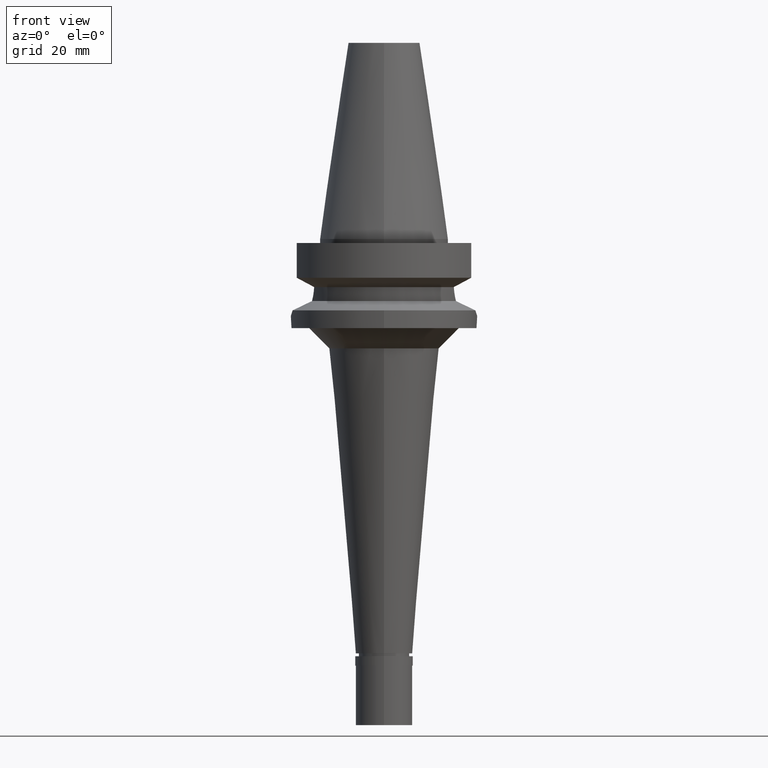
[diagram: clean part render]
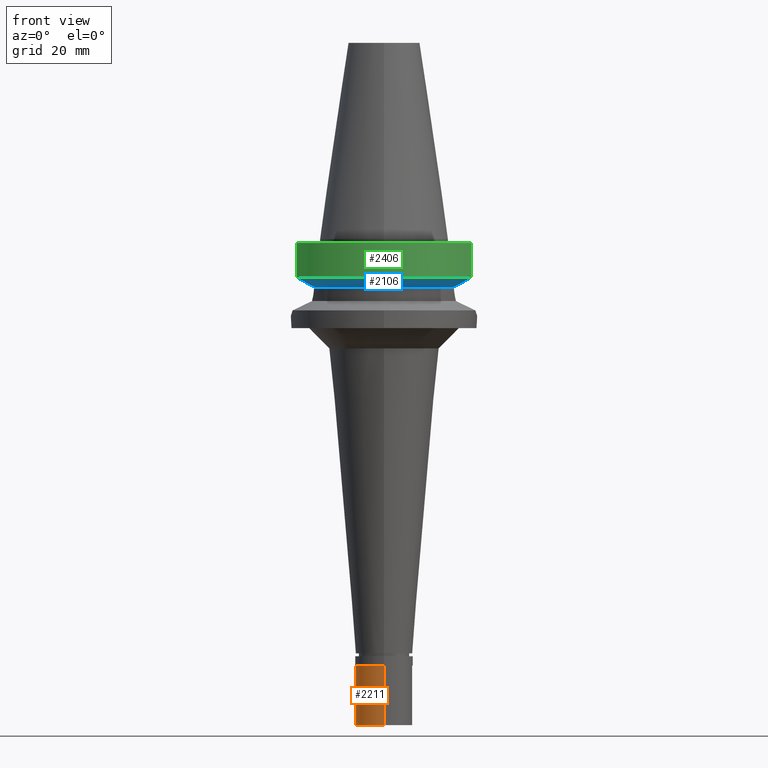
[diagram: same view with three faces highlighted in distinct colors, each labeled with its STEP entity id]
A machine part, front view with three faces highlighted in distinct colors.
Their STEP definitions:

[orange] entity #2211 — the highlighted cylindrical surface (edge-blend (fillet) strip) has radius 7 mm, axis along (0, 0, 1).
#6 = CARTESIAN_POINT ( 'NONE',  ( 0.0000000000000000000, 7.000000000000000000, -17.00000000000000000 ) ) ;
#116 = AXIS2_PLACEMENT_3D ( 'NONE', #1619, #1867, #1342 ) ;
#146 = CARTESIAN_POINT ( 'NONE',  ( 0.0000000000000000000, 7.000000000000000000, -2.299999999999999822 ) ) ;
#167 = CIRCLE ( 'NONE', #837, 7.000000000000000000 ) ;
#428 = EDGE_CURVE ( 'NONE', #584, #2195, #820, .T. ) ;
#430 = EDGE_CURVE ( 'NONE', #966, #584, #167, .T. ) ;
#487 = DIRECTION ( 'NONE',  ( 0.0000000000000000000, 0.0000000000000000000, 1.000000000000000000 ) ) ;
#520 = EDGE_CURVE ( 'NONE', #2195, #2131, #1743, .T. ) ;
#584 = VERTEX_POINT ( 'NONE', #146 ) ;
#708 = CYLINDRICAL_SURFACE ( 'NONE', #2435, 7.000000000000000000 ) ;
#819 = EDGE_CURVE ( 'NONE', #966, #2131, #1202, .T. ) ;
#820 = LINE ( 'NONE', #1458, #2413 ) ;
#837 = AXIS2_PLACEMENT_3D ( 'NONE', #1485, #1013, #2404 ) ;
#922 = FACE_OUTER_BOUND ( 'NONE', #2956, .T. ) ;
#966 = VERTEX_POINT ( 'NONE', #2279 ) ;
#1009 = ORIENTED_EDGE ( 'NONE', *, *, #520, .T. ) ;
#1013 = DIRECTION ( 'NONE',  ( 0.0000000000000000000, 0.0000000000000000000, -1.000000000000000000 ) ) ;
#1202 = LINE ( 'NONE', #2803, #1700 ) ;
#1342 = DIRECTION ( 'NONE',  ( 0.0000000000000000000, 1.000000000000000000, 0.0000000000000000000 ) ) ;
#1387 = DIRECTION ( 'NONE',  ( 0.0000000000000000000, 1.000000000000000000, 0.0000000000000000000 ) ) ;
#1458 = CARTESIAN_POINT ( 'NONE',  ( 0.0000000000000000000, 7.000000000000000000, -2.299999999999999822 ) ) ;
#1485 = CARTESIAN_POINT ( 'NONE',  ( 0.0000000000000000000, 0.0000000000000000000, -2.299999999999999822 ) ) ;
#1605 = CARTESIAN_POINT ( 'NONE',  ( 0.0000000000000000000, 0.0000000000000000000, -17.85000000000000142 ) ) ;
#1619 = CARTESIAN_POINT ( 'NONE',  ( 0.0000000000000000000, 0.0000000000000000000, -17.00000000000000000 ) ) ;
#1700 = VECTOR ( 'NONE', #2228, 1000.000000000000000 ) ;
#1726 = DIRECTION ( 'NONE',  ( 0.0000000000000000000, 0.0000000000000000000, -1.000000000000000000 ) ) ;
#1743 = CIRCLE ( 'NONE', #116, 7.000000000000000000 ) ;
#1867 = DIRECTION ( 'NONE',  ( 0.0000000000000000000, 0.0000000000000000000, 1.000000000000000000 ) ) ;
#1884 = ORIENTED_EDGE ( 'NONE', *, *, #819, .F. ) ;
#2085 = ORIENTED_EDGE ( 'NONE', *, *, #428, .T. ) ;
#2131 = VERTEX_POINT ( 'NONE', #2943 ) ;
#2195 = VERTEX_POINT ( 'NONE', #6 ) ;
#2211 = ADVANCED_FACE ( 'NONE', ( #922 ), #708, .T. ) ;
#2228 = DIRECTION ( 'NONE',  ( 0.0000000000000000000, 0.0000000000000000000, -1.000000000000000000 ) ) ;
#2279 = CARTESIAN_POINT ( 'NONE',  ( 0.0000000000000000000, -7.000000000000000000, -2.299999999999999822 ) ) ;
#2404 = DIRECTION ( 'NONE',  ( 0.0000000000000000000, -1.000000000000000000, 0.0000000000000000000 ) ) ;
#2413 = VECTOR ( 'NONE', #1726, 1000.000000000000000 ) ;
#2431 = ORIENTED_EDGE ( 'NONE', *, *, #430, .T. ) ;
#2435 = AXIS2_PLACEMENT_3D ( 'NONE', #1605, #487, #1387 ) ;
#2803 = CARTESIAN_POINT ( 'NONE',  ( 0.0000000000000000000, -7.000000000000000000, -2.299999999999999822 ) ) ;
#2943 = CARTESIAN_POINT ( 'NONE',  ( 0.0000000000000000000, -7.000000000000000000, -17.00000000000000000 ) ) ;
#2956 = EDGE_LOOP ( 'NONE', ( #1009, #1884, #2431, #2085 ) ) ;

[blue] entity #2106 — the highlighted conical surface has half-angle 60 deg.
#41 = FACE_OUTER_BOUND ( 'NONE', #1570, .T. ) ;
#51 = EDGE_CURVE ( 'NONE', #921, #1553, #1653, .T. ) ;
#140 = ORIENTED_EDGE ( 'NONE', *, *, #2906, .F. ) ;
#357 = CIRCLE ( 'NONE', #2882, 19.00000000000000000 ) ;
#474 = CARTESIAN_POINT ( 'NONE',  ( 18.96736186693999926, -8.050001277873001015, -10.94999977540000025 ) ) ;
#544 = B_SPLINE_CURVE_WITH_KNOTS ( 'NONE', 3,
 ( #1132, #2315, #2065, #2093 ),
 .UNSPECIFIED., .F., .F.,
 ( 4, 4 ),
 ( 0.0000000000000000000, 1.000000000000000000 ),
 .UNSPECIFIED. ) ;
#557 = AXIS2_PLACEMENT_3D ( 'NONE', #2035, #2927, #2496 ) ;
#588 = B_SPLINE_CURVE_WITH_KNOTS ( 'NONE', 3,
 ( #2601, #1241, #1229, #1912 ),
 .UNSPECIFIED., .F., .F.,
 ( 4, 4 ),
 ( 0.0000000000000000000, 1.000000000000000000 ),
 .UNSPECIFIED. ) ;
#660 = CARTESIAN_POINT ( 'NONE',  ( 19.78176446227738339, -8.050001299918164932, -10.51717305795229151 ) ) ;
#696 = EDGE_CURVE ( 'NONE', #1083, #1553, #1848, .T. ) ;
#796 = CARTESIAN_POINT ( 'NONE',  ( 0.0000000000000000000, 1.093341284896999988E-14, -11.87660944646999894 ) ) ;
#899 = B_SPLINE_CURVE_WITH_KNOTS ( 'NONE', 3,
 ( #2825, #2566, #1460, #2326 ),
 .UNSPECIFIED., .F., .F.,
 ( 4, 4 ),
 ( 0.0000000000000000000, 1.000000000000000000 ),
 .UNSPECIFIED. ) ;
#908 = DIRECTION ( 'NONE',  ( 0.0000000000000000000, 1.000000000000000000, 0.0000000000000000000 ) ) ;
#919 = ORIENTED_EDGE ( 'NONE', *, *, #2718, .F. ) ;
#921 = VERTEX_POINT ( 'NONE', #1679 ) ;
#979 = VERTEX_POINT ( 'NONE', #2263 ) ;
#1007 = CARTESIAN_POINT ( 'NONE',  ( -18.96738966519999892, -8.049994318072998922, -10.95000099924999937 ) ) ;
#1083 = VERTEX_POINT ( 'NONE', #1833 ) ;
#1100 = VERTEX_POINT ( 'NONE', #1581 ) ;
#1132 = CARTESIAN_POINT ( 'NONE',  ( -17.23531622871000124, -7.996491146968002006, -11.87660607765999998 ) ) ;
#1217 = ORIENTED_EDGE ( 'NONE', *, *, #696, .F. ) ;
#1222 = EDGE_CURVE ( 'NONE', #921, #979, #899, .T. ) ;
#1229 = CARTESIAN_POINT ( 'NONE',  ( -19.78174442233868291, -8.049991903459016385, -10.51718567402809690 ) ) ;
#1236 = CONICAL_SURFACE ( 'NONE', #2002, 21.00000000000000000, 1.047197551196400456 ) ;
#1241 = CARTESIAN_POINT ( 'NONE',  ( -20.64098922449849383, -8.049999155425599184, -10.05625859809538980 ) ) ;
#1270 = ORIENTED_EDGE ( 'NONE', *, *, #1222, .F. ) ;
#1460 = CARTESIAN_POINT ( 'NONE',  ( 17.72682660363854623, -8.027186146789096810, -11.61172867132722786 ) ) ;
#1482 = ORIENTED_EDGE ( 'NONE', *, *, #2884, .T. ) ;
#1553 = VERTEX_POINT ( 'NONE', #2321 ) ;
#1570 = EDGE_LOOP ( 'NONE', ( #919, #140, #1270, #2026, #1217, #1482 ) ) ;
#1581 = CARTESIAN_POINT ( 'NONE',  ( -17.23531622871000124, -7.996491146968002006, -11.87660607765999998 ) ) ;
#1653 = B_SPLINE_CURVE_WITH_KNOTS ( 'NONE', 3,
 ( #474, #660, #2040, #2944 ),
 .UNSPECIFIED., .F., .F.,
 ( 4, 4 ),
 ( 0.0000000000000000000, 1.000000000000000000 ),
 .UNSPECIFIED. ) ;
#1679 = CARTESIAN_POINT ( 'NONE',  ( 18.96736186693999926, -8.050001277873001015, -10.94999977540000025 ) ) ;
#1833 = CARTESIAN_POINT ( 'NONE',  ( -21.54524325238000060, -8.049999577366000025, -9.567211146628999074 ) ) ;
#1848 = CIRCLE ( 'NONE', #557, 23.00000000000000000 ) ;
#1877 = DIRECTION ( 'NONE',  ( 0.0000000000000000000, -1.000000000000000000, 0.0000000000000000000 ) ) ;
#1912 = CARTESIAN_POINT ( 'NONE',  ( -18.96738966519999892, -8.049994318072998922, -10.95000099924999937 ) ) ;
#2002 = AXIS2_PLACEMENT_3D ( 'NONE', #2770, #2759, #908 ) ;
#2026 = ORIENTED_EDGE ( 'NONE', *, *, #51, .T. ) ;
#2035 = CARTESIAN_POINT ( 'NONE',  ( 0.0000000000000000000, 1.093341284896999988E-14, -9.567208369710998639 ) ) ;
#2040 = CARTESIAN_POINT ( 'NONE',  ( 20.64101735201231591, -8.050004185258069711, -10.05624233374762966 ) ) ;
#2065 = CARTESIAN_POINT ( 'NONE',  ( -18.30334765880726167, -8.049999956192328554, -11.30291652904217514 ) ) ;
#2093 = CARTESIAN_POINT ( 'NONE',  ( -18.96738966519999892, -8.049994318072998922, -10.95000099924999937 ) ) ;
#2106 = ADVANCED_FACE ( 'NONE', ( #41 ), #1236, .T. ) ;
#2263 = CARTESIAN_POINT ( 'NONE',  ( 17.23531135315000284, -7.996501749113000379, -11.87660739352999961 ) ) ;
#2315 = CARTESIAN_POINT ( 'NONE',  ( -17.72598984664393029, -8.027133614840121112, -11.61218199031924669 ) ) ;
#2321 = CARTESIAN_POINT ( 'NONE',  ( 21.54524309446999908, -8.050000000002000888, -9.567208369710998639 ) ) ;
#2326 = CARTESIAN_POINT ( 'NONE',  ( 17.23531135315000284, -7.996501749113000379, -11.87660739352999961 ) ) ;
#2447 = VERTEX_POINT ( 'NONE', #1007 ) ;
#2496 = DIRECTION ( 'NONE',  ( 0.0000000000000000000, -1.000000000000000000, 0.0000000000000000000 ) ) ;
#2566 = CARTESIAN_POINT ( 'NONE',  ( 18.30417677490187955, -8.050000009833846448, -11.30245973955515026 ) ) ;
#2590 = DIRECTION ( 'NONE',  ( 0.0000000000000000000, 0.0000000000000000000, -1.000000000000000000 ) ) ;
#2601 = CARTESIAN_POINT ( 'NONE',  ( -21.54524325238000060, -8.049999577366000025, -9.567211146628999074 ) ) ;
#2718 = EDGE_CURVE ( 'NONE', #1100, #2447, #544, .T. ) ;
#2759 = DIRECTION ( 'NONE',  ( 0.0000000000000000000, 0.0000000000000000000, 1.000000000000000000 ) ) ;
#2770 = CARTESIAN_POINT ( 'NONE',  ( 0.0000000000000000000, 1.093341284896999988E-14, -10.72190890808999875 ) ) ;
#2825 = CARTESIAN_POINT ( 'NONE',  ( 18.96736186693999926, -8.050001277873001015, -10.94999977540000025 ) ) ;
#2882 = AXIS2_PLACEMENT_3D ( 'NONE', #796, #2590, #1877 ) ;
#2884 = EDGE_CURVE ( 'NONE', #1083, #2447, #588, .T. ) ;
#2906 = EDGE_CURVE ( 'NONE', #979, #1100, #357, .T. ) ;
#2927 = DIRECTION ( 'NONE',  ( 0.0000000000000000000, 0.0000000000000000000, 1.000000000000000000 ) ) ;
#2944 = CARTESIAN_POINT ( 'NONE',  ( 21.54524309446999908, -8.050000000002000888, -9.567208369710998639 ) ) ;

[green] entity #2406 — the highlighted cylindrical surface (partial cylindrical patch) has radius 23 mm, axis along (0, 0, -1).
#174 = ORIENTED_EDGE ( 'NONE', *, *, #696, .T. ) ;
#255 = DIRECTION ( 'NONE',  ( 0.0000000000000000000, -1.000000000000000000, 0.0000000000000000000 ) ) ;
#293 = EDGE_CURVE ( 'NONE', #892, #313, #2090, .T. ) ;
#305 = DIRECTION ( 'NONE',  ( 1.843191712699997682E-08, -4.933165888406983159E-08, 0.9999999999999985567 ) ) ;
#313 = VERTEX_POINT ( 'NONE', #850 ) ;
#420 = CARTESIAN_POINT ( 'NONE',  ( 21.54524309446999908, -8.050000000000000711, -1.000000000000000000 ) ) ;
#495 = CARTESIAN_POINT ( 'NONE',  ( 21.54524309446999908, -8.050000000000000711, -1.000000000000000000 ) ) ;
#557 = AXIS2_PLACEMENT_3D ( 'NONE', #2035, #2927, #2496 ) ;
#581 = EDGE_CURVE ( 'NONE', #1083, #313, #2357, .T. ) ;
#696 = EDGE_CURVE ( 'NONE', #1083, #1553, #1848, .T. ) ;
#806 = ORIENTED_EDGE ( 'NONE', *, *, #293, .T. ) ;
#850 = CARTESIAN_POINT ( 'NONE',  ( -21.54524309446999908, -8.050000000000000711, -1.000000000000000000 ) ) ;
#892 = VERTEX_POINT ( 'NONE', #420 ) ;
#968 = DIRECTION ( 'NONE',  ( 0.0000000000000000000, 0.0000000000000000000, -1.000000000000000000 ) ) ;
#1083 = VERTEX_POINT ( 'NONE', #1833 ) ;
#1131 = EDGE_CURVE ( 'NONE', #892, #1553, #1366, .T. ) ;
#1366 = LINE ( 'NONE', #495, #2238 ) ;
#1553 = VERTEX_POINT ( 'NONE', #2321 ) ;
#1676 = CARTESIAN_POINT ( 'NONE',  ( 0.0000000000000000000, 1.918041816824999936E-14, 56.61999999999999744 ) ) ;
#1683 = AXIS2_PLACEMENT_3D ( 'NONE', #2011, #2503, #255 ) ;
#1765 = AXIS2_PLACEMENT_3D ( 'NONE', #1676, #968, #1882 ) ;
#1833 = CARTESIAN_POINT ( 'NONE',  ( -21.54524325238000060, -8.049999577366000025, -9.567211146628999074 ) ) ;
#1848 = CIRCLE ( 'NONE', #557, 23.00000000000000000 ) ;
#1882 = DIRECTION ( 'NONE',  ( 0.0000000000000000000, -1.000000000000000000, 0.0000000000000000000 ) ) ;
#1992 = ORIENTED_EDGE ( 'NONE', *, *, #1131, .F. ) ;
#2011 = CARTESIAN_POINT ( 'NONE',  ( 0.0000000000000000000, 1.918041816824999936E-14, -0.9999999999999000799 ) ) ;
#2035 = CARTESIAN_POINT ( 'NONE',  ( 0.0000000000000000000, 1.093341284896999988E-14, -9.567208369710998639 ) ) ;
#2090 = CIRCLE ( 'NONE', #1683, 23.00000000000000000 ) ;
#2109 = CYLINDRICAL_SURFACE ( 'NONE', #1765, 23.00000000000000000 ) ;
#2238 = VECTOR ( 'NONE', #2922, 1000.000000000000114 ) ;
#2321 = CARTESIAN_POINT ( 'NONE',  ( 21.54524309446999908, -8.050000000002000888, -9.567208369710998639 ) ) ;
#2357 = LINE ( 'NONE', #2818, #2893 ) ;
#2400 = FACE_OUTER_BOUND ( 'NONE', #2946, .T. ) ;
#2406 = ADVANCED_FACE ( 'NONE', ( #2400 ), #2109, .T. ) ;
#2496 = DIRECTION ( 'NONE',  ( 0.0000000000000000000, -1.000000000000000000, 0.0000000000000000000 ) ) ;
#2503 = DIRECTION ( 'NONE',  ( 0.0000000000000000000, 0.0000000000000000000, -1.000000000000000000 ) ) ;
#2689 = ORIENTED_EDGE ( 'NONE', *, *, #581, .F. ) ;
#2818 = CARTESIAN_POINT ( 'NONE',  ( -21.54524325238000060, -8.049999577366000025, -9.567211146628999074 ) ) ;
#2893 = VECTOR ( 'NONE', #305, 1000.000000000000114 ) ;
#2922 = DIRECTION ( 'NONE',  ( -9.134800745262689569E-08, -2.444862507563914651E-07, -0.9999999999999659162 ) ) ;
#2927 = DIRECTION ( 'NONE',  ( 0.0000000000000000000, 0.0000000000000000000, 1.000000000000000000 ) ) ;
#2946 = EDGE_LOOP ( 'NONE', ( #2689, #174, #1992, #806 ) ) ;